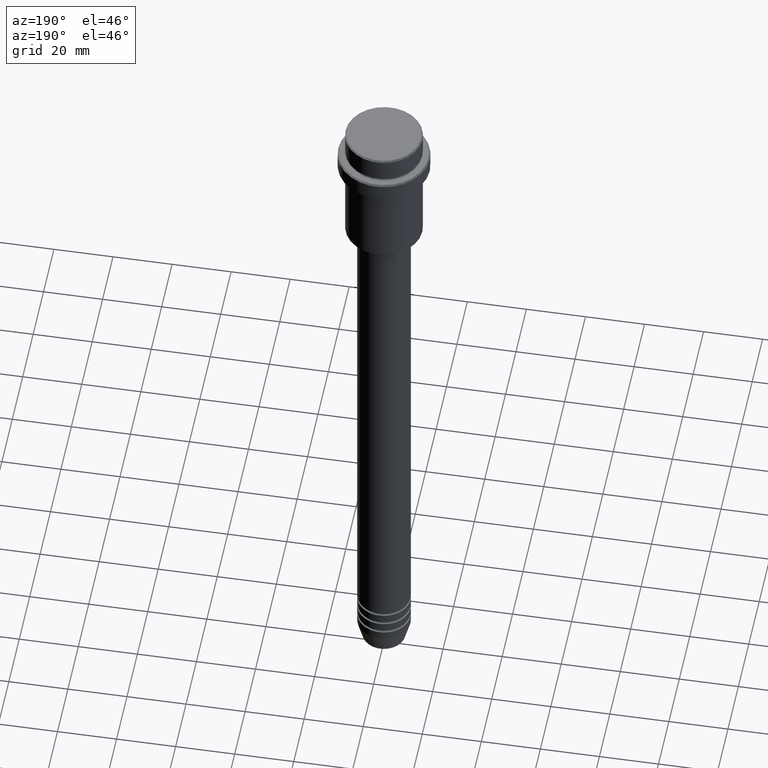
[diagram: clean part render]
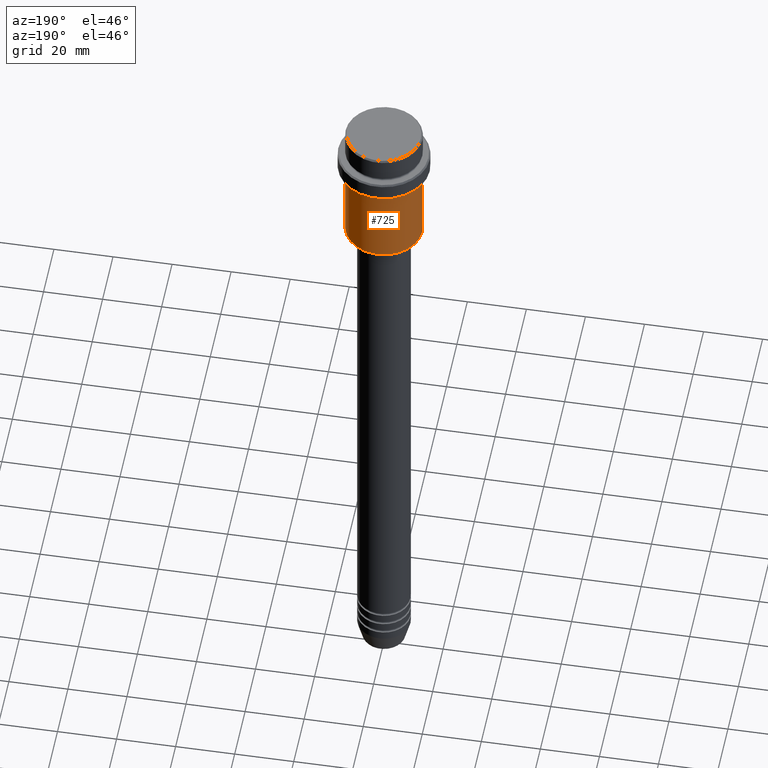
[diagram: same view with one face highlighted and labeled with its STEP entity id]
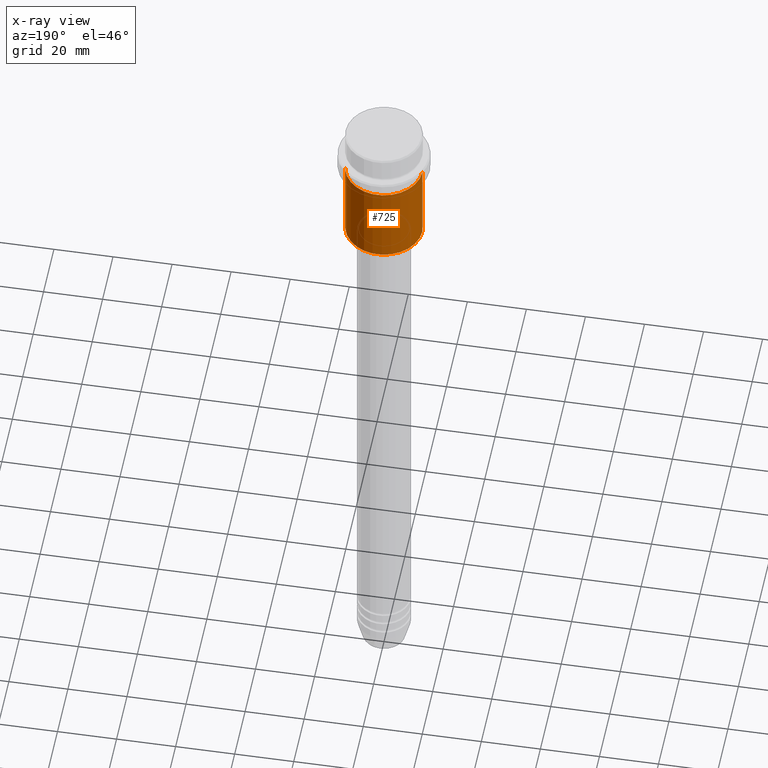
[diagram: x-ray of the same camera — body ghosted, the highlighted face saturated]
A machine part, auxiliary view. The second image highlights one B-rep face of the part: STEP entity #725.
The next image is the same camera in x-ray: the body ghosted, the highlighted face saturated — about 0% of this face is hidden behind the body in this view.
In plain terms, the highlighted cylindrical surface (partial cylindrical patch) has radius 13 mm, axis along (-0, -0, 1).
Its self-contained STEP definition (entity closure, byte-faithful):
#35 = ORIENTED_EDGE ( 'NONE', *, *, #664, .F. ) ;
#41 = LINE ( 'NONE', #239, #841 ) ;
#74 = VERTEX_POINT ( 'NONE', #238 ) ;
#81 = VECTOR ( 'NONE', #403, 1000.000000000000000 ) ;
#86 = LINE ( 'NONE', #728, #81 ) ;
#100 = ORIENTED_EDGE ( 'NONE', *, *, #1386, .T. ) ;
#105 = CIRCLE ( 'NONE', #316, 13.00000000000000000 ) ;
#136 = DIRECTION ( 'NONE',  ( -1.000000000000000000, 0.000000000000000000, 0.000000000000000000 ) ) ;
#176 = DIRECTION ( 'NONE',  ( 1.000000000000000000, 0.000000000000000000, 0.000000000000000000 ) ) ;
#238 = CARTESIAN_POINT ( 'NONE',  ( 13.00000000000000000, 0.000000000000000000, -16.00000000000000000 ) ) ;
#239 = CARTESIAN_POINT ( 'NONE',  ( -13.00000000000000000, 1.592040838891559095E-15, 0.000000000000000000 ) ) ;
#316 = AXIS2_PLACEMENT_3D ( 'NONE', #582, #591, #136 ) ;
#324 = CARTESIAN_POINT ( 'NONE',  ( -13.00000000000000000, 1.592040838891559095E-15, -16.00000000000000000 ) ) ;
#403 = DIRECTION ( 'NONE',  ( -0.000000000000000000, -0.000000000000000000, 1.000000000000000000 ) ) ;
#407 = CARTESIAN_POINT ( 'NONE',  ( 0.000000000000000000, 0.000000000000000000, 0.000000000000000000 ) ) ;
#498 = DIRECTION ( 'NONE',  ( 1.000000000000000000, 0.000000000000000000, 0.000000000000000000 ) ) ;
#564 = CIRCLE ( 'NONE', #1381, 13.00000000000000000 ) ;
#575 = DIRECTION ( 'NONE',  ( -0.000000000000000000, -0.000000000000000000, 1.000000000000000000 ) ) ;
#582 = CARTESIAN_POINT ( 'NONE',  ( 0.000000000000000000, 0.000000000000000000, -44.50000000000007105 ) ) ;
#591 = DIRECTION ( 'NONE',  ( -0.000000000000000000, -0.000000000000000000, 1.000000000000000000 ) ) ;
#664 = EDGE_CURVE ( 'NONE', #74, #904, #564, .T. ) ;
#719 = ORIENTED_EDGE ( 'NONE', *, *, #1115, .F. ) ;
#725 = ADVANCED_FACE ( 'NONE', ( #832 ), #1059, .T. ) ;
#728 = CARTESIAN_POINT ( 'NONE',  ( 13.00000000000000000, 0.000000000000000000, 0.000000000000000000 ) ) ;
#730 = DIRECTION ( 'NONE',  ( -0.000000000000000000, -0.000000000000000000, 1.000000000000000000 ) ) ;
#756 = ORIENTED_EDGE ( 'NONE', *, *, #951, .T. ) ;
#809 = AXIS2_PLACEMENT_3D ( 'NONE', #407, #1037, #498 ) ;
#832 = FACE_OUTER_BOUND ( 'NONE', #1147, .T. ) ;
#841 = VECTOR ( 'NONE', #575, 1000.000000000000000 ) ;
#904 = VERTEX_POINT ( 'NONE', #324 ) ;
#951 = EDGE_CURVE ( 'NONE', #1295, #1250, #105, .T. ) ;
#1037 = DIRECTION ( 'NONE',  ( -0.000000000000000000, -0.000000000000000000, 1.000000000000000000 ) ) ;
#1052 = CARTESIAN_POINT ( 'NONE',  ( 0.000000000000000000, 0.000000000000000000, -16.00000000000000000 ) ) ;
#1059 = CYLINDRICAL_SURFACE ( 'NONE', #809, 13.00000000000000000 ) ;
#1115 = EDGE_CURVE ( 'NONE', #1295, #74, #86, .T. ) ;
#1147 = EDGE_LOOP ( 'NONE', ( #756, #100, #35, #719 ) ) ;
#1250 = VERTEX_POINT ( 'NONE', #1399 ) ;
#1295 = VERTEX_POINT ( 'NONE', #1301 ) ;
#1301 = CARTESIAN_POINT ( 'NONE',  ( 13.00000000000000000, 0.000000000000000000, -44.50000000000007105 ) ) ;
#1381 = AXIS2_PLACEMENT_3D ( 'NONE', #1052, #730, #176 ) ;
#1386 = EDGE_CURVE ( 'NONE', #1250, #904, #41, .T. ) ;
#1399 = CARTESIAN_POINT ( 'NONE',  ( -13.00000000000000000, 1.592040838891559095E-15, -44.50000000000007105 ) ) ;